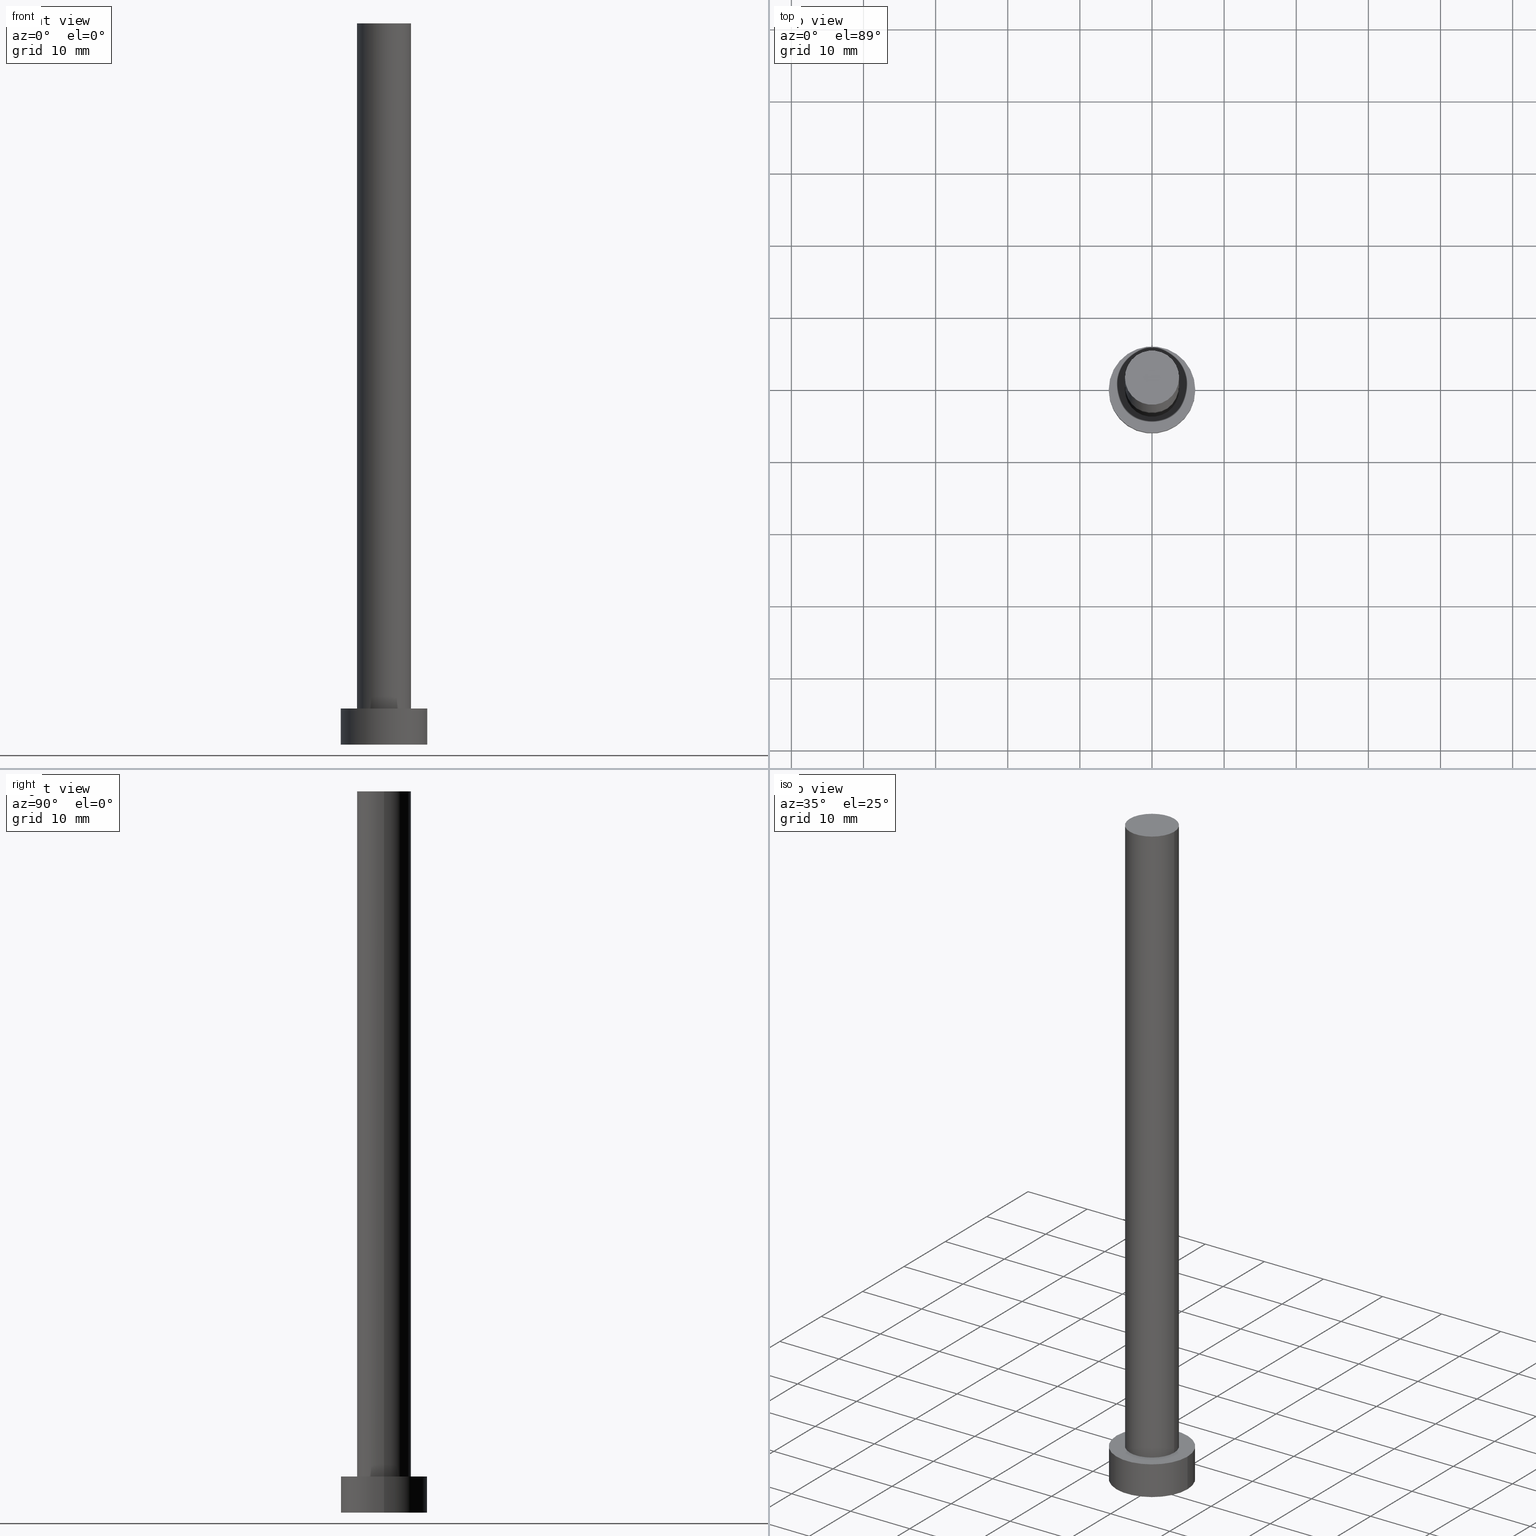
[diagram: canonical four-view strip — front | top / right | iso, engineering-drawing reading convention]
A machine part, canonical four-view strip (front | top / right | iso — engineering-drawing reading convention). The complete STEP part file that produces these views, byte-faithful:
ISO-10303-21;
HEADER;
FILE_DESCRIPTION (( 'STEP AP203' ),
    '1' );
FILE_NAME ('2093.STEP',
    '2023-02-13T14:47:37',
    ( '' ),
    ( '' ),
    'SwSTEP 2.0',
    'SolidWorks 2019',
    '' );
FILE_SCHEMA (( 'CONFIG_CONTROL_DESIGN' ));
ENDSEC;

DATA;
#1 = LINE ( 'NONE', #251, #250 ) ;
#2 = EDGE_LOOP ( 'NONE', ( #163, #10 ) ) ;
#3 = ORGANIZATION ( 'NEUR�EN�', 'NEUR�EN�', '' ) ;
#4 = ORIENTED_EDGE ( 'NONE', *, *, #158, .T. ) ;
#5 = UNCERTAINTY_MEASURE_WITH_UNIT (LENGTH_MEASURE( 1.000000000000000082E-05 ), #185, 'distance_accuracy_value', 'NONE');
#6 = ORIENTED_EDGE ( 'NONE', *, *, #194, .F. ) ;
#7 = VECTOR ( 'NONE', #76, 1000.000000000000000 ) ;
#8 = PERSON_AND_ORGANIZATION ( #247, #3 ) ;
#9 = CLOSED_SHELL ( 'NONE', ( #40, #167, #174, #90, #129, #140, #208 ) ) ;
#10 = ORIENTED_EDGE ( 'NONE', *, *, #134, .F. ) ;
#11 = AXIS2_PLACEMENT_3D ( 'NONE', #213, #215, #95 ) ;
#12 = EDGE_CURVE ( 'NONE', #175, #43, #150, .T. ) ;
#13 = APPROVAL_DATE_TIME ( #210, #114 ) ;
#14 = FACE_OUTER_BOUND ( 'NONE', #39, .T. ) ;
#15 = AXIS2_PLACEMENT_3D ( 'NONE', #54, #25, #37 ) ;
#16 = CARTESIAN_POINT ( 'NONE',  ( -3.750000000000000000, 0.000000000000000000, 100.0000000000000000 ) ) ;
#17 = APPROVAL_PERSON_ORGANIZATION ( #204, #59, #235 ) ;
#18 = DIRECTION ( 'NONE',  ( 0.000000000000000000, 0.000000000000000000, 1.000000000000000000 ) ) ;
#19 = CC_DESIGN_PERSON_AND_ORGANIZATION_ASSIGNMENT ( #31, #141, ( #182 ) ) ;
#20 = CARTESIAN_POINT ( 'NONE',  ( 6.000000000000000888, 7.347880794884120722E-16, 5.000000000000000000 ) ) ;
#21 = CARTESIAN_POINT ( 'NONE',  ( 3.750000000000000000, 4.592425496802573972E-16, 100.0000000000000000 ) ) ;
#22 = FACE_OUTER_BOUND ( 'NONE', #181, .T. ) ;
#23 = CARTESIAN_POINT ( 'NONE',  ( 0.000000000000000000, 0.000000000000000000, 100.0000000000000000 ) ) ;
#24 = CIRCLE ( 'NONE', #15, 3.750000000000000000 ) ;
#25 = DIRECTION ( 'NONE',  ( 0.000000000000000000, 0.000000000000000000, 1.000000000000000000 ) ) ;
#26 = PERSON_AND_ORGANIZATION_ROLE ( 'design_owner' ) ;
#27 = VERTEX_POINT ( 'NONE', #49 ) ;
#28 = COORDINATED_UNIVERSAL_TIME_OFFSET ( 1, 0, .AHEAD. ) ;
#29 = ORIENTED_EDGE ( 'NONE', *, *, #109, .F. ) ;
#30 = ORIENTED_EDGE ( 'NONE', *, *, #63, .T. ) ;
#31 = PERSON_AND_ORGANIZATION ( #247, #3 ) ;
#32 = APPLICATION_CONTEXT ( 'configuration controlled 3d designs of mechanical parts and assemblies' ) ;
#33 = DIRECTION ( 'NONE',  ( 0.000000000000000000, 0.000000000000000000, 1.000000000000000000 ) ) ;
#34 = AXIS2_PLACEMENT_3D ( 'NONE', #45, #203, #70 ) ;
#35 = CARTESIAN_POINT ( 'NONE',  ( 0.000000000000000000, 0.000000000000000000, 0.000000000000000000 ) ) ;
#36 = CYLINDRICAL_SURFACE ( 'NONE', #201, 6.000000000000000888 ) ;
#37 = DIRECTION ( 'NONE',  ( 1.000000000000000000, 0.000000000000000000, 0.000000000000000000 ) ) ;
#38 = CARTESIAN_POINT ( 'NONE',  ( -3.750000000000000000, 0.000000000000000000, 5.000000000000000000 ) ) ;
#39 = EDGE_LOOP ( 'NONE', ( #101, #138, #64, #47 ) ) ;
#40 = ADVANCED_FACE ( 'NONE', ( #14 ), #245, .T. ) ;
#41 = FACE_OUTER_BOUND ( 'NONE', #87, .T. ) ;
#42 = COORDINATED_UNIVERSAL_TIME_OFFSET ( 1, 0, .AHEAD. ) ;
#43 = VERTEX_POINT ( 'NONE', #207 ) ;
#44 = EDGE_CURVE ( 'NONE', #83, #27, #244, .T. ) ;
#45 = CARTESIAN_POINT ( 'NONE',  ( 0.000000000000000000, 0.000000000000000000, 0.000000000000000000 ) ) ;
#46 = CALENDAR_DATE ( 2023, 13, 2 ) ;
#47 = ORIENTED_EDGE ( 'NONE', *, *, #107, .F. ) ;
#48 = APPROVAL_DATE_TIME ( #183, #59 ) ;
#49 = CARTESIAN_POINT ( 'NONE',  ( 6.000000000000000888, 7.347880794884120722E-16, 0.000000000000000000 ) ) ;
#50 = CARTESIAN_POINT ( 'NONE',  ( 0.000000000000000000, 0.000000000000000000, 100.0000000000000000 ) ) ;
#51 = CARTESIAN_POINT ( 'NONE',  ( 0.000000000000000000, 0.000000000000000000, 100.0000000000000000 ) ) ;
#52 = APPROVAL_PERSON_ORGANIZATION ( #66, #88, #146 ) ;
#53 = DIRECTION ( 'NONE',  ( 0.000000000000000000, 0.000000000000000000, 1.000000000000000000 ) ) ;
#54 = CARTESIAN_POINT ( 'NONE',  ( 0.000000000000000000, 0.000000000000000000, 5.000000000000000000 ) ) ;
#55 = CC_DESIGN_PERSON_AND_ORGANIZATION_ASSIGNMENT ( #8, #176, ( #148 ) ) ;
#56 = DIRECTION ( 'NONE',  ( 0.000000000000000000, 0.000000000000000000, 1.000000000000000000 ) ) ;
#57 = CARTESIAN_POINT ( 'NONE',  ( -6.000000000000000888, 0.000000000000000000, 0.000000000000000000 ) ) ;
#58 = VERTEX_POINT ( 'NONE', #16 ) ;
#59 = APPROVAL ( #105, 'NEUR�EN�' ) ;
#60 = DIRECTION ( 'NONE',  ( 1.000000000000000000, 0.000000000000000000, -0.000000000000000000 ) ) ;
#61 = SECURITY_CLASSIFICATION_LEVEL ( 'unclassified' ) ;
#62 = ORIENTED_EDGE ( 'NONE', *, *, #44, .T. ) ;
#63 = EDGE_CURVE ( 'NONE', #184, #58, #190, .T. ) ;
#64 = ORIENTED_EDGE ( 'NONE', *, *, #109, .T. ) ;
#65 = CC_DESIGN_APPROVAL ( #114, ( #182 ) ) ;
#66 = PERSON_AND_ORGANIZATION ( #247, #3 ) ;
#67 = ORIENTED_EDGE ( 'NONE', *, *, #253, .T. ) ;
#68 = AXIS2_PLACEMENT_3D ( 'NONE', #197, #131, #211 ) ;
#69 = APPLICATION_PROTOCOL_DEFINITION ( 'international standard', 'config_control_design', 1994, #32 ) ;
#70 = DIRECTION ( 'NONE',  ( 1.000000000000000000, 0.000000000000000000, 0.000000000000000000 ) ) ;
#71 = PERSON_AND_ORGANIZATION ( #247, #3 ) ;
#72 = ORIENTED_EDGE ( 'NONE', *, *, #84, .T. ) ;
#73 = EDGE_CURVE ( 'NONE', #43, #83, #1, .T. ) ;
#74 = FACE_OUTER_BOUND ( 'NONE', #125, .T. ) ;
#75 = LINE ( 'NONE', #93, #7 ) ;
#76 = DIRECTION ( 'NONE',  ( -0.000000000000000000, -0.000000000000000000, -1.000000000000000000 ) ) ;
#77 = AXIS2_PLACEMENT_3D ( 'NONE', #117, #53, #228 ) ;
#78 = DIRECTION ( 'NONE',  ( -0.000000000000000000, -0.000000000000000000, -1.000000000000000000 ) ) ;
#79 = PLANE ( 'NONE',  #77 ) ;
#80 = LOCAL_TIME ( 15, 47, 37.00000000000000000, #42 ) ;
#81 = ORIENTED_EDGE ( 'NONE', *, *, #73, .T. ) ;
#82 = MECHANICAL_CONTEXT ( 'NONE', #32, 'mechanical' ) ;
#83 = VERTEX_POINT ( 'NONE', #57 ) ;
#84 = EDGE_CURVE ( 'NONE', #239, #219, #24, .T. ) ;
#85 = DIRECTION ( 'NONE',  ( 1.000000000000000000, 0.000000000000000000, 0.000000000000000000 ) ) ;
#86 = CIRCLE ( 'NONE', #227, 6.000000000000000888 ) ;
#87 = EDGE_LOOP ( 'NONE', ( #108, #186, #240, #154 ) ) ;
#88 = APPROVAL ( #200, 'NEUR�EN�' ) ;
#89 = DATE_TIME_ROLE ( 'classification_date' ) ;
#90 = ADVANCED_FACE ( 'NONE', ( #173, #74 ), #79, .T. ) ;
#91 = AXIS2_PLACEMENT_3D ( 'NONE', #153, #209, #246 ) ;
#92 = CARTESIAN_POINT ( 'NONE',  ( -3.750000000000000000, 0.000000000000000000, 100.0000000000000000 ) ) ;
#93 = CARTESIAN_POINT ( 'NONE',  ( 3.750000000000000000, 4.592425496802573972E-16, 100.0000000000000000 ) ) ;
#94 = LOCAL_TIME ( 15, 47, 37.00000000000000000, #224 ) ;
#95 = DIRECTION ( 'NONE',  ( -1.000000000000000000, 0.000000000000000000, 0.000000000000000000 ) ) ;
#96 = DIRECTION ( 'NONE',  ( 1.000000000000000000, 0.000000000000000000, 0.000000000000000000 ) ) ;
#97 = ADVANCED_BREP_SHAPE_REPRESENTATION ( '2093', ( #156, #34 ), #188 ) ;
#98 = CARTESIAN_POINT ( 'NONE',  ( 0.000000000000000000, 0.000000000000000000, 5.000000000000000000 ) ) ;
#99 = ORIENTED_EDGE ( 'NONE', *, *, #84, .F. ) ;
#100 =( NAMED_UNIT ( * ) PLANE_ANGLE_UNIT ( ) SI_UNIT ( $, .RADIAN. ) );
#101 = ORIENTED_EDGE ( 'NONE', *, *, #63, .F. ) ;
#102 = CC_DESIGN_DATE_AND_TIME_ASSIGNMENT ( #145, #121, ( #165 ) ) ;
#103 = PERSON_AND_ORGANIZATION ( #247, #3 ) ;
#104 = EDGE_LOOP ( 'NONE', ( #142, #199, #81, #62 ) ) ;
#105 = APPROVAL_STATUS ( 'not_yet_approved' ) ;
#106 = VECTOR ( 'NONE', #231, 1000.000000000000000 ) ;
#107 = EDGE_CURVE ( 'NONE', #58, #239, #169, .T. ) ;
#108 = ORIENTED_EDGE ( 'NONE', *, *, #12, .F. ) ;
#109 = EDGE_CURVE ( 'NONE', #219, #239, #110, .T. ) ;
#110 = CIRCLE ( 'NONE', #68, 3.750000000000000000 ) ;
#111 = CC_DESIGN_PERSON_AND_ORGANIZATION_ASSIGNMENT ( #103, #180, ( #165 ) ) ;
#112 = CARTESIAN_POINT ( 'NONE',  ( 6.000000000000000888, 7.347880794884120722E-16, 5.000000000000000000 ) ) ;
#113 = FACE_OUTER_BOUND ( 'NONE', #123, .T. ) ;
#114 = APPROVAL ( #127, 'NEUR�EN�' ) ;
#115 = DIRECTION ( 'NONE',  ( 1.000000000000000000, 0.000000000000000000, 0.000000000000000000 ) ) ;
#116 = CARTESIAN_POINT ( 'NONE',  ( 0.000000000000000000, 0.000000000000000000, 100.0000000000000000 ) ) ;
#117 = CARTESIAN_POINT ( 'NONE',  ( 0.000000000000000000, 0.000000000000000000, 5.000000000000000000 ) ) ;
#118 = CIRCLE ( 'NONE', #157, 6.000000000000000888 ) ;
#119 = CALENDAR_DATE ( 2023, 13, 2 ) ;
#120 = CC_DESIGN_SECURITY_CLASSIFICATION ( #182, ( #148 ) ) ;
#121 = DATE_TIME_ROLE ( 'creation_date' ) ;
#122 = PERSON_AND_ORGANIZATION ( #247, #3 ) ;
#123 = EDGE_LOOP ( 'NONE', ( #67, #30 ) ) ;
#124 = DIRECTION ( 'NONE',  ( -0.000000000000000000, -0.000000000000000000, -1.000000000000000000 ) ) ;
#125 = EDGE_LOOP ( 'NONE', ( #4, #217 ) ) ;
#126 = CC_DESIGN_APPROVAL ( #88, ( #165 ) ) ;
#127 = APPROVAL_STATUS ( 'not_yet_approved' ) ;
#128 = AXIS2_PLACEMENT_3D ( 'NONE', #50, #33, #248 ) ;
#129 = ADVANCED_FACE ( 'NONE', ( #135 ), #172, .F. ) ;
#130 = DIRECTION ( 'NONE',  ( -1.000000000000000000, 0.000000000000000000, 0.000000000000000000 ) ) ;
#131 = DIRECTION ( 'NONE',  ( 0.000000000000000000, 0.000000000000000000, 1.000000000000000000 ) ) ;
#132 = DIRECTION ( 'NONE',  ( -0.000000000000000000, -0.000000000000000000, -1.000000000000000000 ) ) ;
#133 = AXIS2_PLACEMENT_3D ( 'NONE', #51, #124, #130 ) ;
#134 = EDGE_CURVE ( 'NONE', #27, #83, #86, .T. ) ;
#135 = FACE_OUTER_BOUND ( 'NONE', #2, .T. ) ;
#136 = DIRECTION ( 'NONE',  ( 1.000000000000000000, 0.000000000000000000, -0.000000000000000000 ) ) ;
#137 = DIRECTION ( 'NONE',  ( 0.000000000000000000, 0.000000000000000000, 1.000000000000000000 ) ) ;
#138 = ORIENTED_EDGE ( 'NONE', *, *, #194, .T. ) ;
#139 = AXIS2_PLACEMENT_3D ( 'NONE', #187, #18, #225 ) ;
#140 = ADVANCED_FACE ( 'NONE', ( #22 ), #234, .T. ) ;
#141 = PERSON_AND_ORGANIZATION_ROLE ( 'classification_officer' ) ;
#142 = ORIENTED_EDGE ( 'NONE', *, *, #152, .F. ) ;
#143 =( NAMED_UNIT ( * ) SI_UNIT ( $, .STERADIAN. ) SOLID_ANGLE_UNIT ( ) );
#144 = AXIS2_PLACEMENT_3D ( 'NONE', #161, #78, #212 ) ;
#145 = DATE_AND_TIME ( #164, #94 ) ;
#146 = APPROVAL_ROLE ( '' ) ;
#147 = DATE_AND_TIME ( #238, #170 ) ;
#148 = PRODUCT_DEFINITION_FORMATION_WITH_SPECIFIED_SOURCE ( 'LIBOVOLN�', '', #179, .NOT_KNOWN. ) ;
#149 = COORDINATED_UNIVERSAL_TIME_OFFSET ( 1, 0, .AHEAD. ) ;
#150 = CIRCLE ( 'NONE', #139, 6.000000000000000888 ) ;
#151 = SHAPE_DEFINITION_REPRESENTATION ( #191, #97 ) ;
#152 = EDGE_CURVE ( 'NONE', #175, #27, #230, .T. ) ;
#153 = CARTESIAN_POINT ( 'NONE',  ( 0.000000000000000000, 0.000000000000000000, 0.000000000000000000 ) ) ;
#154 = ORIENTED_EDGE ( 'NONE', *, *, #73, .F. ) ;
#155 = CARTESIAN_POINT ( 'NONE',  ( 0.000000000000000000, 0.000000000000000000, 0.000000000000000000 ) ) ;
#156 = MANIFOLD_SOLID_BREP ( 'P�idat vysunut�m3', #9 ) ;
#157 = AXIS2_PLACEMENT_3D ( 'NONE', #195, #254, #115 ) ;
#158 = EDGE_CURVE ( 'NONE', #43, #175, #118, .T. ) ;
#159 = DIRECTION ( 'NONE',  ( -0.000000000000000000, -0.000000000000000000, -1.000000000000000000 ) ) ;
#160 = FACE_OUTER_BOUND ( 'NONE', #104, .T. ) ;
#161 = CARTESIAN_POINT ( 'NONE',  ( 0.000000000000000000, 0.000000000000000000, 5.000000000000000000 ) ) ;
#162 = APPROVAL_DATE_TIME ( #147, #88 ) ;
#163 = ORIENTED_EDGE ( 'NONE', *, *, #44, .F. ) ;
#164 = CALENDAR_DATE ( 2023, 13, 2 ) ;
#165 = PRODUCT_DEFINITION ( 'NEZN�M�', '', #148, #178 ) ;
#166 = AXIS2_PLACEMENT_3D ( 'NONE', #155, #56, #60 ) ;
#167 = ADVANCED_FACE ( 'NONE', ( #41 ), #255, .T. ) ;
#168 = LOCAL_TIME ( 15, 47, 37.00000000000000000, #149 ) ;
#169 = LINE ( 'NONE', #92, #220 ) ;
#170 = LOCAL_TIME ( 15, 47, 37.00000000000000000, #28 ) ;
#171 = PLANE ( 'NONE',  #242 ) ;
#172 = PLANE ( 'NONE',  #166 ) ;
#173 = FACE_BOUND ( 'NONE', #236, .T. ) ;
#174 = ADVANCED_FACE ( 'NONE', ( #160 ), #36, .T. ) ;
#175 = VERTEX_POINT ( 'NONE', #20 ) ;
#176 = PERSON_AND_ORGANIZATION_ROLE ( 'creator' ) ;
#177 = ORIENTED_EDGE ( 'NONE', *, *, #253, .F. ) ;
#178 = DESIGN_CONTEXT ( 'detailed design', #196, 'design' ) ;
#179 = PRODUCT ( '2093', '2093', '', ( #82 ) ) ;
#180 = PERSON_AND_ORGANIZATION_ROLE ( 'creator' ) ;
#181 = EDGE_LOOP ( 'NONE', ( #6, #177, #192, #72 ) ) ;
#182 = SECURITY_CLASSIFICATION ( '', '', #61 ) ;
#183 = DATE_AND_TIME ( #46, #80 ) ;
#184 = VERTEX_POINT ( 'NONE', #21 ) ;
#185 =( LENGTH_UNIT ( ) NAMED_UNIT ( * ) SI_UNIT ( .MILLI., .METRE. ) );
#186 = ORIENTED_EDGE ( 'NONE', *, *, #152, .T. ) ;
#187 = CARTESIAN_POINT ( 'NONE',  ( 0.000000000000000000, 0.000000000000000000, 5.000000000000000000 ) ) ;
#188 =( GEOMETRIC_REPRESENTATION_CONTEXT ( 3 ) GLOBAL_UNCERTAINTY_ASSIGNED_CONTEXT ( ( #5 ) ) GLOBAL_UNIT_ASSIGNED_CONTEXT ( ( #185, #100, #143 ) ) REPRESENTATION_CONTEXT ( 'NONE', 'WORKASPACE' ) );
#189 = APPROVAL_ROLE ( '' ) ;
#190 = CIRCLE ( 'NONE', #128, 3.750000000000000000 ) ;
#191 = PRODUCT_DEFINITION_SHAPE ( 'NONE', 'NONE',  #165 ) ;
#192 = ORIENTED_EDGE ( 'NONE', *, *, #107, .T. ) ;
#193 = DIRECTION ( 'NONE',  ( -0.000000000000000000, -0.000000000000000000, -1.000000000000000000 ) ) ;
#194 = EDGE_CURVE ( 'NONE', #184, #219, #75, .T. ) ;
#195 = CARTESIAN_POINT ( 'NONE',  ( 0.000000000000000000, 0.000000000000000000, 5.000000000000000000 ) ) ;
#196 = APPLICATION_CONTEXT ( 'configuration controlled 3d designs of mechanical parts and assemblies' ) ;
#197 = CARTESIAN_POINT ( 'NONE',  ( 0.000000000000000000, 0.000000000000000000, 5.000000000000000000 ) ) ;
#198 = DIRECTION ( 'NONE',  ( 0.000000000000000000, 0.000000000000000000, 1.000000000000000000 ) ) ;
#199 = ORIENTED_EDGE ( 'NONE', *, *, #158, .F. ) ;
#200 = APPROVAL_STATUS ( 'not_yet_approved' ) ;
#201 = AXIS2_PLACEMENT_3D ( 'NONE', #98, #193, #252 ) ;
#202 = DATE_AND_TIME ( #119, #223 ) ;
#203 = DIRECTION ( 'NONE',  ( 0.000000000000000000, 0.000000000000000000, 1.000000000000000000 ) ) ;
#204 = PERSON_AND_ORGANIZATION ( #247, #3 ) ;
#205 = APPROVAL_PERSON_ORGANIZATION ( #71, #114, #189 ) ;
#206 = PERSON_AND_ORGANIZATION_ROLE ( 'design_supplier' ) ;
#207 = CARTESIAN_POINT ( 'NONE',  ( -6.000000000000000888, 0.000000000000000000, 5.000000000000000000 ) ) ;
#208 = ADVANCED_FACE ( 'NONE', ( #113 ), #171, .T. ) ;
#209 = DIRECTION ( 'NONE',  ( 0.000000000000000000, 0.000000000000000000, 1.000000000000000000 ) ) ;
#210 = DATE_AND_TIME ( #243, #168 ) ;
#211 = DIRECTION ( 'NONE',  ( 1.000000000000000000, 0.000000000000000000, 0.000000000000000000 ) ) ;
#212 = DIRECTION ( 'NONE',  ( -1.000000000000000000, 0.000000000000000000, 0.000000000000000000 ) ) ;
#213 = CARTESIAN_POINT ( 'NONE',  ( 0.000000000000000000, 0.000000000000000000, 100.0000000000000000 ) ) ;
#214 = CARTESIAN_POINT ( 'NONE',  ( 3.750000000000000000, 4.592425496802573972E-16, 5.000000000000000000 ) ) ;
#215 = DIRECTION ( 'NONE',  ( -0.000000000000000000, -0.000000000000000000, -1.000000000000000000 ) ) ;
#216 = COORDINATED_UNIVERSAL_TIME_OFFSET ( 1, 0, .AHEAD. ) ;
#217 = ORIENTED_EDGE ( 'NONE', *, *, #12, .T. ) ;
#218 = CC_DESIGN_DATE_AND_TIME_ASSIGNMENT ( #202, #89, ( #182 ) ) ;
#219 = VERTEX_POINT ( 'NONE', #214 ) ;
#220 = VECTOR ( 'NONE', #159, 1000.000000000000000 ) ;
#221 = APPLICATION_PROTOCOL_DEFINITION ( 'international standard', 'config_control_design', 1994, #196 ) ;
#222 = CC_DESIGN_PERSON_AND_ORGANIZATION_ASSIGNMENT ( #241, #26, ( #179 ) ) ;
#223 = LOCAL_TIME ( 15, 47, 37.00000000000000000, #216 ) ;
#224 = COORDINATED_UNIVERSAL_TIME_OFFSET ( 1, 0, .AHEAD. ) ;
#225 = DIRECTION ( 'NONE',  ( 1.000000000000000000, 0.000000000000000000, 0.000000000000000000 ) ) ;
#226 = CIRCLE ( 'NONE', #237, 3.750000000000000000 ) ;
#227 = AXIS2_PLACEMENT_3D ( 'NONE', #35, #137, #96 ) ;
#228 = DIRECTION ( 'NONE',  ( 1.000000000000000000, 0.000000000000000000, -0.000000000000000000 ) ) ;
#229 = CC_DESIGN_APPROVAL ( #59, ( #148 ) ) ;
#230 = LINE ( 'NONE', #112, #106 ) ;
#231 = DIRECTION ( 'NONE',  ( -0.000000000000000000, -0.000000000000000000, -1.000000000000000000 ) ) ;
#232 = PRODUCT_RELATED_PRODUCT_CATEGORY ( 'detail', '', ( #179 ) ) ;
#233 = DIRECTION ( 'NONE',  ( 0.000000000000000000, 0.000000000000000000, 1.000000000000000000 ) ) ;
#234 = CYLINDRICAL_SURFACE ( 'NONE', #11, 3.750000000000000000 ) ;
#235 = APPROVAL_ROLE ( '' ) ;
#236 = EDGE_LOOP ( 'NONE', ( #99, #29 ) ) ;
#237 = AXIS2_PLACEMENT_3D ( 'NONE', #116, #198, #85 ) ;
#238 = CALENDAR_DATE ( 2023, 13, 2 ) ;
#239 = VERTEX_POINT ( 'NONE', #38 ) ;
#240 = ORIENTED_EDGE ( 'NONE', *, *, #134, .T. ) ;
#241 = PERSON_AND_ORGANIZATION ( #247, #3 ) ;
#242 = AXIS2_PLACEMENT_3D ( 'NONE', #23, #233, #136 ) ;
#243 = CALENDAR_DATE ( 2023, 13, 2 ) ;
#244 = CIRCLE ( 'NONE', #91, 6.000000000000000888 ) ;
#245 = CYLINDRICAL_SURFACE ( 'NONE', #133, 3.750000000000000000 ) ;
#246 = DIRECTION ( 'NONE',  ( 1.000000000000000000, 0.000000000000000000, 0.000000000000000000 ) ) ;
#247 = PERSON ( 'NEUR�EN�', 'NEUR�EN�', 'NEUR�EN�', ('NEUR�EN�'), ('NEUR�EN�'), ('NEUR�EN�') ) ;
#248 = DIRECTION ( 'NONE',  ( 1.000000000000000000, 0.000000000000000000, 0.000000000000000000 ) ) ;
#249 = CC_DESIGN_PERSON_AND_ORGANIZATION_ASSIGNMENT ( #122, #206, ( #148 ) ) ;
#250 = VECTOR ( 'NONE', #132, 1000.000000000000000 ) ;
#251 = CARTESIAN_POINT ( 'NONE',  ( -6.000000000000000888, 0.000000000000000000, 5.000000000000000000 ) ) ;
#252 = DIRECTION ( 'NONE',  ( -1.000000000000000000, 0.000000000000000000, 0.000000000000000000 ) ) ;
#253 = EDGE_CURVE ( 'NONE', #58, #184, #226, .T. ) ;
#254 = DIRECTION ( 'NONE',  ( 0.000000000000000000, 0.000000000000000000, 1.000000000000000000 ) ) ;
#255 = CYLINDRICAL_SURFACE ( 'NONE', #144, 6.000000000000000888 ) ;
ENDSEC;
END-ISO-10303-21;
